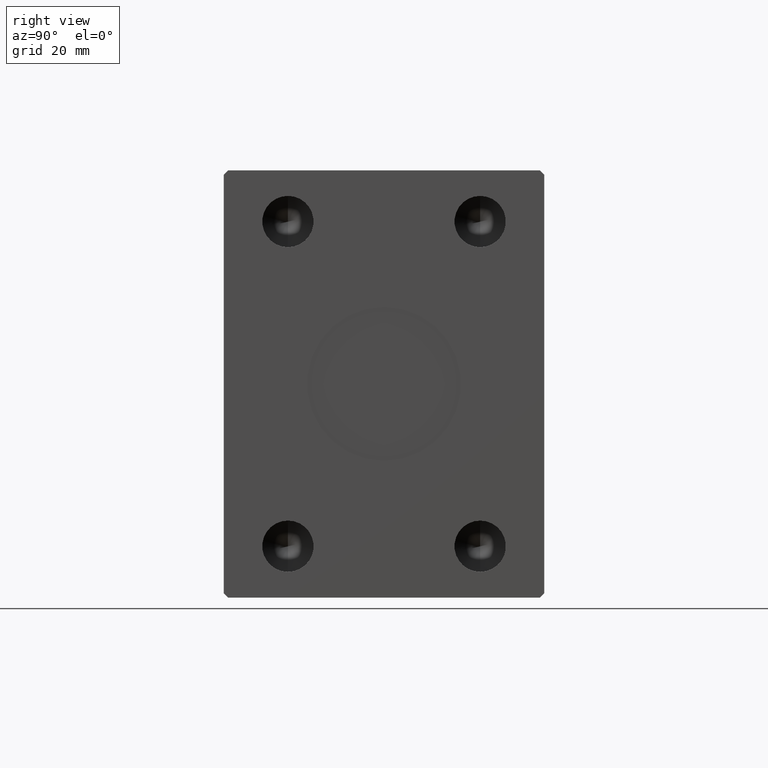
[diagram: clean part render]
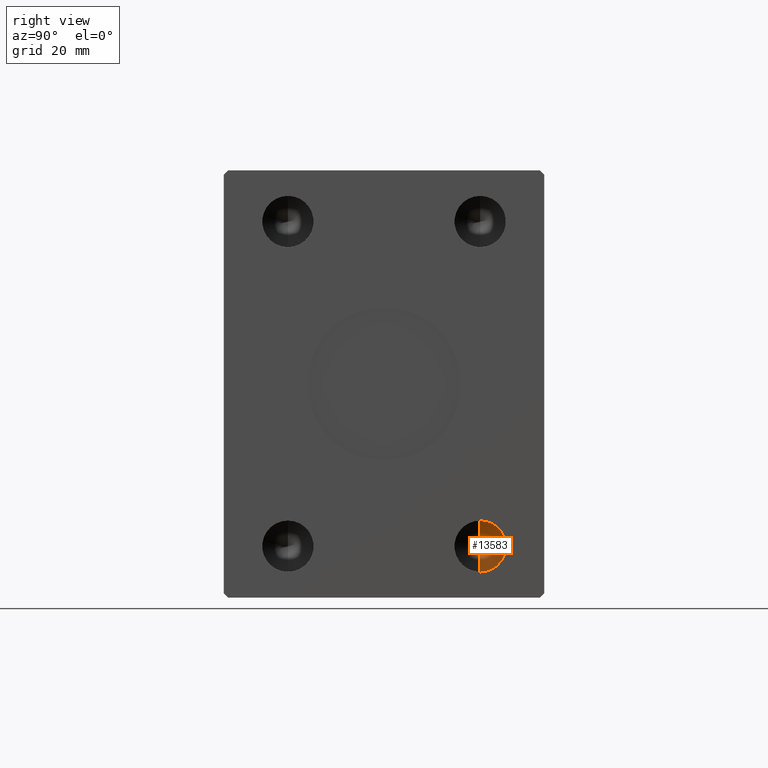
[diagram: same view with one face highlighted and labeled with its STEP entity id]
A machine part, right view. The second image highlights one B-rep face of the part: STEP entity #13583.
In plain terms, the highlighted conical surface has half-angle 59 deg.
Its self-contained STEP definition (entity closure, byte-faithful):
#376 = DIRECTION ( 'NONE',  ( 1.000000000000000000, -0.000000000000000000, -0.000000000000000000 ) ) ;
#1184 = CARTESIAN_POINT ( 'NONE',  ( 84.32999999999998408, 22.50000000000000000, -38.00000000000000000 ) ) ;
#2577 = DIRECTION ( 'NONE',  ( 0.5150380749100547106, 1.049727191138618326E-16, 0.8571673007021120005 ) ) ;
#3031 = LINE ( 'NONE', #33327, #36883 ) ;
#4391 = CARTESIAN_POINT ( 'NONE',  ( 80.72483628583462689, 22.49999999999999289, -38.00000000000000000 ) ) ;
#7949 = CIRCLE ( 'NONE', #20069, 5.999999999999998224 ) ;
#11983 = VECTOR ( 'NONE', #21069, 1000.000000000000000 ) ;
#13583 = ADVANCED_FACE ( 'NONE', ( #28564 ), #24087, .F. ) ;
#15045 = VERTEX_POINT ( 'NONE', #4391 ) ;
#16874 = DIRECTION ( 'NONE',  ( 0.000000000000000000, 0.000000000000000000, -1.000000000000000000 ) ) ;
#17729 = CARTESIAN_POINT ( 'NONE',  ( 84.32999999999998408, 22.50000000000000000, -44.00000000000000000 ) ) ;
#19208 = ORIENTED_EDGE ( 'NONE', *, *, #36110, .F. ) ;
#20069 = AXIS2_PLACEMENT_3D ( 'NONE', #44048, #376, #16874 ) ;
#20385 = EDGE_CURVE ( 'NONE', #39190, #34066, #7949, .T. ) ;
#21069 = DIRECTION ( 'NONE',  ( 0.5150380749100547106, 0.000000000000000000, -0.8571673007021120005 ) ) ;
#21175 = CARTESIAN_POINT ( 'NONE',  ( 84.32999999999998408, 22.50000000000000000, -32.00000000000000000 ) ) ;
#24087 = CONICAL_SURFACE ( 'NONE', #30482, 5.999999999999998224, 1.029744258676653867 ) ;
#25022 = DIRECTION ( 'NONE',  ( 0.000000000000000000, 0.000000000000000000, -1.000000000000000000 ) ) ;
#25139 = CARTESIAN_POINT ( 'NONE',  ( 84.32999999999998408, 22.50000000000000000, -44.00000000000000000 ) ) ;
#27594 = EDGE_LOOP ( 'NONE', ( #19208, #34560, #40593 ) ) ;
#28564 = FACE_OUTER_BOUND ( 'NONE', #27594, .T. ) ;
#30482 = AXIS2_PLACEMENT_3D ( 'NONE', #1184, #34625, #25022 ) ;
#31520 = LINE ( 'NONE', #17729, #11983 ) ;
#33327 = CARTESIAN_POINT ( 'NONE',  ( 84.32999999999998408, 22.50000000000000000, -32.00000000000000000 ) ) ;
#34066 = VERTEX_POINT ( 'NONE', #21175 ) ;
#34560 = ORIENTED_EDGE ( 'NONE', *, *, #37858, .T. ) ;
#34625 = DIRECTION ( 'NONE',  ( 1.000000000000000000, -0.000000000000000000, -0.000000000000000000 ) ) ;
#36110 = EDGE_CURVE ( 'NONE', #15045, #34066, #3031, .T. ) ;
#36883 = VECTOR ( 'NONE', #2577, 1000.000000000000000 ) ;
#37858 = EDGE_CURVE ( 'NONE', #15045, #39190, #31520, .T. ) ;
#39190 = VERTEX_POINT ( 'NONE', #25139 ) ;
#40593 = ORIENTED_EDGE ( 'NONE', *, *, #20385, .T. ) ;
#44048 = CARTESIAN_POINT ( 'NONE',  ( 84.32999999999998408, 22.50000000000000000, -38.00000000000000000 ) ) ;